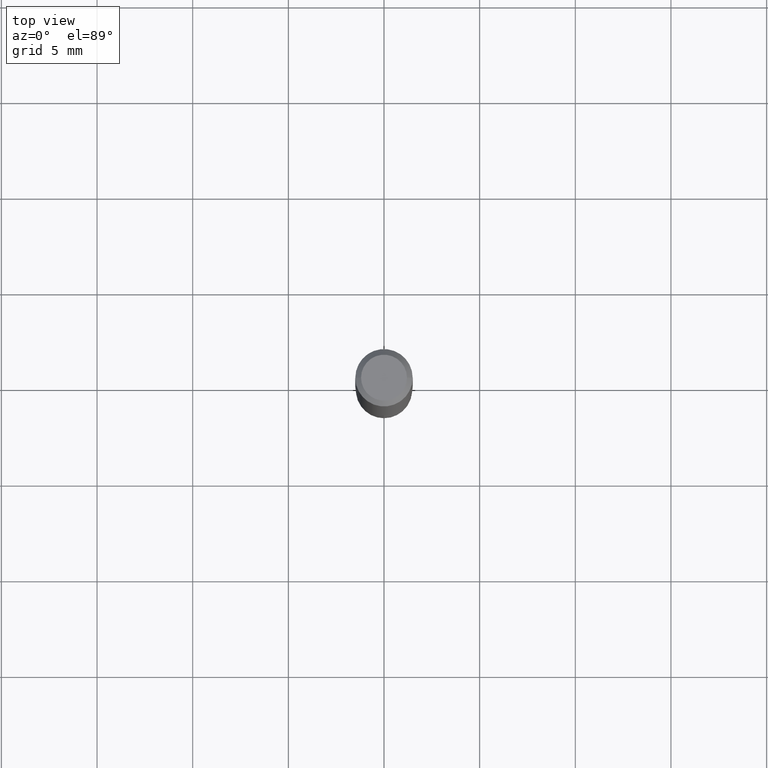
[diagram: clean part render]
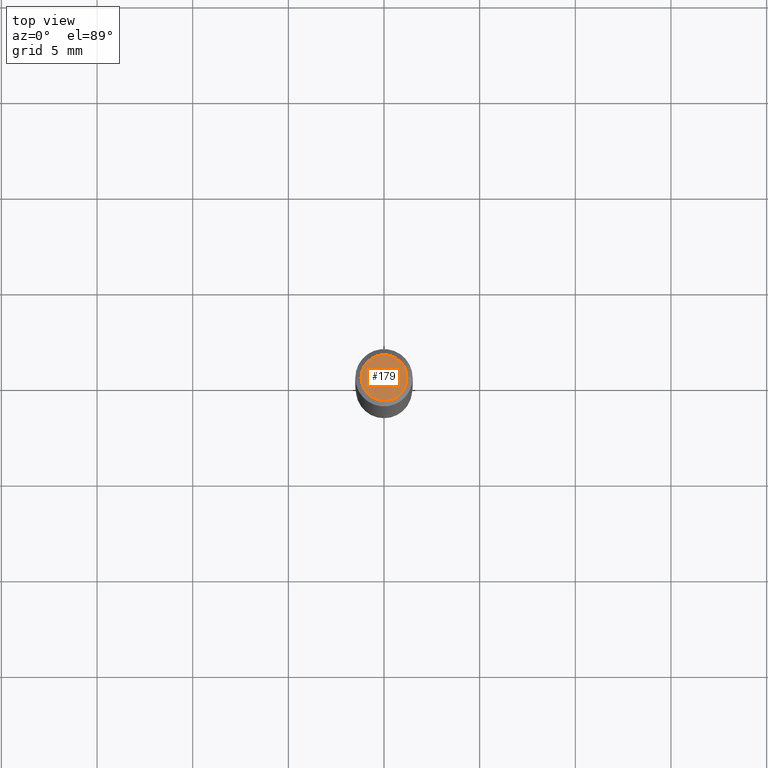
[diagram: same view with one face highlighted and labeled with its STEP entity id]
A machine part, top view. The second image highlights one B-rep face of the part: STEP entity #179.
In plain terms, the highlighted planar face has unit normal (0, -0, -1).
Its self-contained STEP definition (entity closure, byte-faithful):
#13 = DIRECTION ( 'NONE',  ( 1.000000000000000000, -6.982962677686266711E-15, 4.876185090822587894E-29 ) ) ;
#17 = VERTEX_POINT ( 'NONE', #252 ) ;
#24 = PLANE ( 'NONE',  #188 ) ;
#129 = CARTESIAN_POINT ( 'NONE',  ( -0.04724000000000000421, 3.504923541997677355E-16, -3.380025165670481712E-19 ) ) ;
#163 = EDGE_LOOP ( 'NONE', ( #247, #335 ) ) ;
#178 = DIRECTION ( 'NONE',  ( 2.438088387897960049E-29, -3.491481338843145188E-15, -1.000000000000000000 ) ) ;
#179 = ADVANCED_FACE ( 'NONE', ( #372 ), #24, .F. ) ;
#188 = AXIS2_PLACEMENT_3D ( 'NONE', #338, #178, #332 ) ;
#213 = CIRCLE ( 'NONE', #359, 0.04724000000000000421 ) ;
#233 = CARTESIAN_POINT ( 'NONE',  ( 8.265746106709734507E-48, -1.180129479067563789E-33, -3.380025165646692144E-19 ) ) ;
#236 = AXIS2_PLACEMENT_3D ( 'NONE', #314, #249, #13 ) ;
#246 = CIRCLE ( 'NONE', #236, 0.04724000000000000421 ) ;
#247 = ORIENTED_EDGE ( 'NONE', *, *, #397, .T. ) ;
#249 = DIRECTION ( 'NONE',  ( -2.445468806185136597E-29, 3.491481338843145583E-15, 1.000000000000000000 ) ) ;
#252 = CARTESIAN_POINT ( 'NONE',  ( 0.04724000000000000421, -3.852183633974369345E-16, -3.380025165621689721E-19 ) ) ;
#280 = VERTEX_POINT ( 'NONE', #129 ) ;
#314 = CARTESIAN_POINT ( 'NONE',  ( 8.265746106709734507E-48, -1.180129479067563789E-33, -3.380025165646692144E-19 ) ) ;
#332 = DIRECTION ( 'NONE',  ( -1.000000000000000000, 6.982962677686265922E-15, -4.876176775795935793E-29 ) ) ;
#335 = ORIENTED_EDGE ( 'NONE', *, *, #358, .T. ) ;
#338 = CARTESIAN_POINT ( 'NONE',  ( 4.132873053354867254E-48, -5.900647395337818946E-34, -1.690012582823346072E-19 ) ) ;
#349 = DIRECTION ( 'NONE',  ( 1.000000000000000000, -6.982962677686266711E-15, 4.876185090822587894E-29 ) ) ;
#358 = EDGE_CURVE ( 'NONE', #17, #280, #213, .T. ) ;
#359 = AXIS2_PLACEMENT_3D ( 'NONE', #233, #385, #349 ) ;
#372 = FACE_OUTER_BOUND ( 'NONE', #163, .T. ) ;
#385 = DIRECTION ( 'NONE',  ( -2.445468806185136597E-29, 3.491481338843145583E-15, 1.000000000000000000 ) ) ;
#397 = EDGE_CURVE ( 'NONE', #280, #17, #246, .T. ) ;